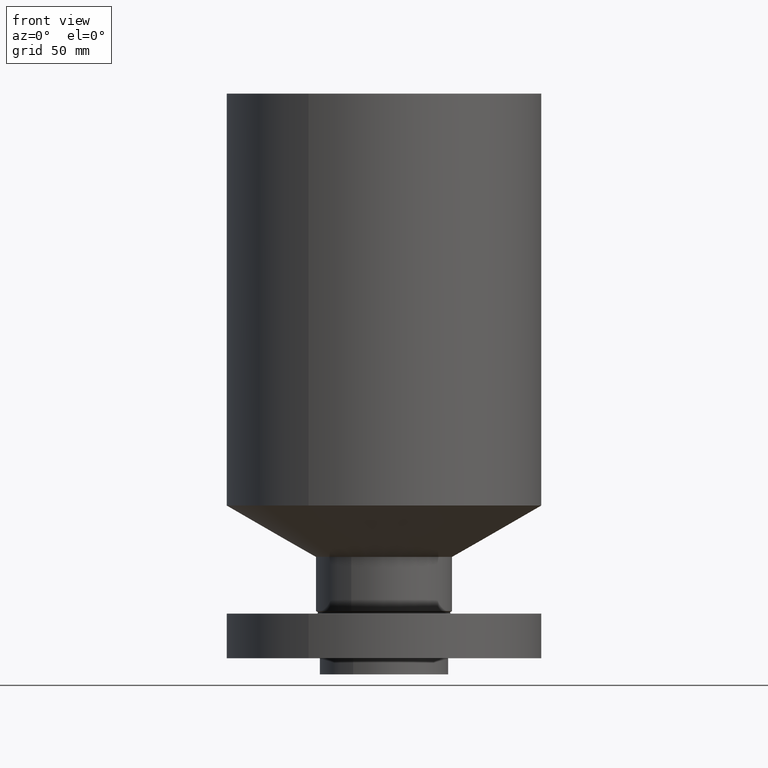
[diagram: clean part render]
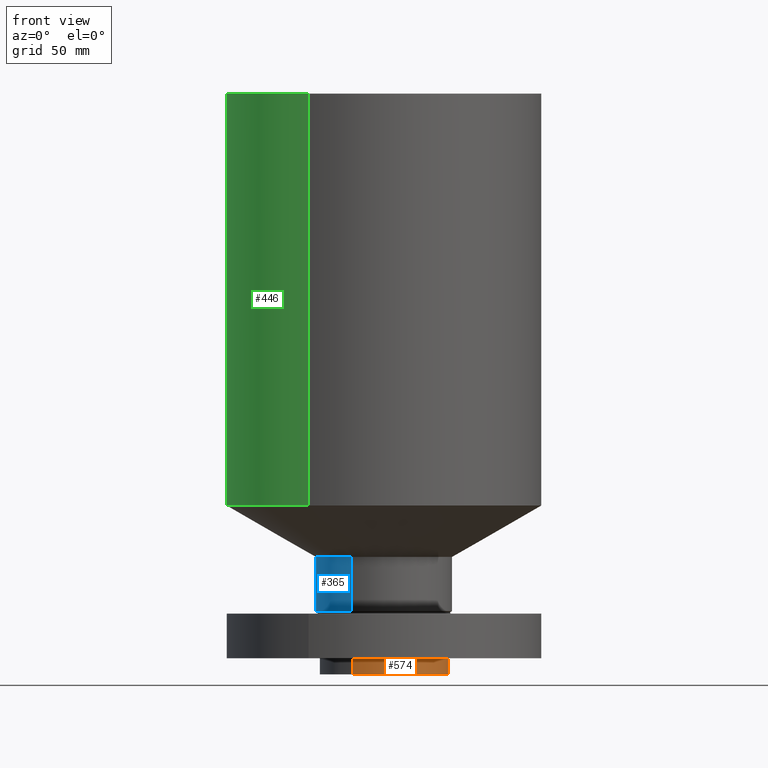
[diagram: same view with three faces highlighted in distinct colors, each labeled with its STEP entity id]
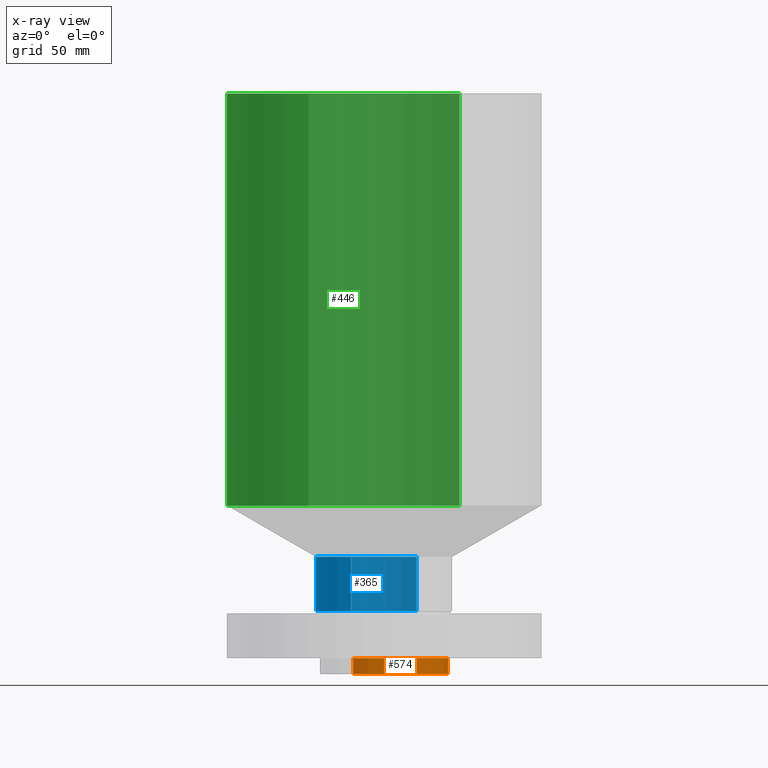
[diagram: x-ray of the same camera — body ghosted, the three highlighted faces saturated]
A machine part, front view with three faces highlighted in distinct colors.
The next image is the same camera in x-ray (body ghosted, the three faces saturated) — at least one of them is partly hidden behind the body in this view.
Their STEP definitions:

[orange] entity #574 — the highlighted cylindrical surface (partial cylindrical patch) has radius 25.4 mm, axis along (0, 0, -1).
#109=AXIS2_PLACEMENT_3D('Circle Axis2P3D',#107,#108,$) ;
#534=AXIS2_PLACEMENT_3D('Circle Axis2P3D',#532,#533,$) ;
#549=AXIS2_PLACEMENT_3D('Cylinder Axis2P3D',#546,#547,#548) ;
#107=CARTESIAN_POINT('Axis2P3D Location',(0.,0.,0.)) ;
#111=CARTESIAN_POINT('Vertex',(0.479425538606,0.877582561894,0.)) ;
#113=CARTESIAN_POINT('Vertex',(-0.479425538606,-0.877582561894,0.)) ;
#527=CARTESIAN_POINT('Vertex',(-0.479425538606,-0.877582561894,-0.250000000001)) ;
#529=CARTESIAN_POINT('Vertex',(0.479425538606,0.877582561894,-0.250000000001)) ;
#532=CARTESIAN_POINT('Axis2P3D Location',(0.,0.,-0.250000000001)) ;
#546=CARTESIAN_POINT('Axis2P3D Location',(0.,0.,4.25000000002)) ;
#551=CARTESIAN_POINT('Line Origine',(-0.479425538606,-0.877582561894,-0.125000000001)) ;
#556=CARTESIAN_POINT('Line Origine',(0.479425538606,0.877582561894,-0.125000000001)) ;
#108=DIRECTION('Axis2P3D Direction',(0.,0.,-0.0393700787402)) ;
#533=DIRECTION('Axis2P3D Direction',(0.,0.,-0.0393700787402)) ;
#547=DIRECTION('Axis2P3D Direction',(0.,0.,-0.0393700787402)) ;
#548=DIRECTION('Axis2P3D XDirection',(0.0188750212049,0.0345504945626,0.)) ;
#552=DIRECTION('Vector Direction',(0.,0.,-0.0393700787402)) ;
#557=DIRECTION('Vector Direction',(0.,0.,-0.0393700787402)) ;
#553=VECTOR('Line Direction',#552,0.0393700787402) ;
#558=VECTOR('Line Direction',#557,0.0393700787402) ;
#569=ORIENTED_EDGE('',*,*,#536,.F.) ;
#570=ORIENTED_EDGE('',*,*,#560,.T.) ;
#571=ORIENTED_EDGE('',*,*,#115,.T.) ;
#572=ORIENTED_EDGE('',*,*,#555,.F.) ;
#574=ADVANCED_FACE('PartBody',(#573),#550,.T.) ;
#110=CIRCLE('generated circle',#109,1.) ;
#535=CIRCLE('generated circle',#534,1.) ;
#550=CYLINDRICAL_SURFACE('generated cylinder',#549,1.) ;
#115=EDGE_CURVE('',#112,#114,#110,.T.) ;
#536=EDGE_CURVE('',#530,#528,#535,.T.) ;
#555=EDGE_CURVE('',#528,#114,#554,.F.) ;
#560=EDGE_CURVE('',#530,#112,#559,.F.) ;
#568=EDGE_LOOP('',(#569,#570,#571,#572)) ;
#573=FACE_OUTER_BOUND('',#568,.T.) ;
#554=LINE('Line',#551,#553) ;
#559=LINE('Line',#556,#558) ;
#112=VERTEX_POINT('',#111) ;
#114=VERTEX_POINT('',#113) ;
#528=VERTEX_POINT('',#527) ;
#530=VERTEX_POINT('',#529) ;

[blue] entity #365 — the highlighted cylindrical surface (partial cylindrical patch) has radius 26.924 mm, axis along (0, 0, -1).
#313=AXIS2_PLACEMENT_3D('Circle Axis2P3D',#311,#312,$) ;
#326=AXIS2_PLACEMENT_3D('Cylinder Axis2P3D',#323,#324,#325) ;
#356=AXIS2_PLACEMENT_3D('Circle Axis2P3D',#354,#355,$) ;
#289=CARTESIAN_POINT('Vertex',(0.508191070922,0.930237515608,0.730980762116)) ;
#296=CARTESIAN_POINT('Vertex',(-0.508191070922,-0.930237515608,0.730980762116)) ;
#311=CARTESIAN_POINT('Axis2P3D Location',(0.,0.,0.730980762116)) ;
#323=CARTESIAN_POINT('Axis2P3D Location',(0.,0.,4.25000000002)) ;
#328=CARTESIAN_POINT('Line Origine',(0.508191070922,0.930237515608,1.15049038106)) ;
#332=CARTESIAN_POINT('Vertex',(0.508191070922,0.930237515608,1.57000000001)) ;
#339=CARTESIAN_POINT('Vertex',(-0.508191070922,-0.930237515608,1.57000000001)) ;
#342=CARTESIAN_POINT('Line Origine',(-0.508191070922,-0.930237515608,1.15049038106)) ;
#354=CARTESIAN_POINT('Axis2P3D Location',(0.,0.,1.57000000001)) ;
#312=DIRECTION('Axis2P3D Direction',(-0.,0.,0.0393700787402)) ;
#324=DIRECTION('Axis2P3D Direction',(0.,0.,-0.0393700787402)) ;
#325=DIRECTION('Axis2P3D XDirection',(-0.0188750212049,-0.0345504945626,0.)) ;
#329=DIRECTION('Vector Direction',(0.,0.,-0.0393700787402)) ;
#343=DIRECTION('Vector Direction',(0.,0.,-0.0393700787402)) ;
#355=DIRECTION('Axis2P3D Direction',(0.,0.,-0.0393700787402)) ;
#330=VECTOR('Line Direction',#329,0.0393700787402) ;
#344=VECTOR('Line Direction',#343,0.0393700787402) ;
#360=ORIENTED_EDGE('',*,*,#315,.F.) ;
#361=ORIENTED_EDGE('',*,*,#346,.T.) ;
#362=ORIENTED_EDGE('',*,*,#358,.T.) ;
#363=ORIENTED_EDGE('',*,*,#334,.F.) ;
#365=ADVANCED_FACE('PartBody',(#364),#327,.T.) ;
#314=CIRCLE('generated circle',#313,1.06) ;
#357=CIRCLE('generated circle',#356,1.06) ;
#327=CYLINDRICAL_SURFACE('generated cylinder',#326,1.06) ;
#315=EDGE_CURVE('',#297,#290,#314,.F.) ;
#334=EDGE_CURVE('',#290,#333,#331,.F.) ;
#346=EDGE_CURVE('',#297,#340,#345,.F.) ;
#358=EDGE_CURVE('',#340,#333,#357,.T.) ;
#359=EDGE_LOOP('',(#360,#361,#362,#363)) ;
#364=FACE_OUTER_BOUND('',#359,.T.) ;
#331=LINE('Line',#328,#330) ;
#345=LINE('Line',#342,#344) ;
#290=VERTEX_POINT('',#289) ;
#297=VERTEX_POINT('',#296) ;
#333=VERTEX_POINT('',#332) ;
#340=VERTEX_POINT('',#339) ;

[green] entity #446 — the highlighted cylindrical surface (partial cylindrical patch) has radius 61.976 mm, axis along (0, 0, -1).
#183=AXIS2_PLACEMENT_3D('Cylinder Axis2P3D',#180,#181,#182) ;
#399=AXIS2_PLACEMENT_3D('Circle Axis2P3D',#397,#398,$) ;
#437=AXIS2_PLACEMENT_3D('Circle Axis2P3D',#435,#436,$) ;
#180=CARTESIAN_POINT('Axis2P3D Location',(0.,0.,4.25000000002)) ;
#375=CARTESIAN_POINT('Vertex',(1.1697983142,2.14130145102,2.36674337149)) ;
#382=CARTESIAN_POINT('Vertex',(-1.1697983142,-2.14130145102,2.36674337149)) ;
#397=CARTESIAN_POINT('Axis2P3D Location',(0.,0.,2.36674337149)) ;
#409=CARTESIAN_POINT('Line Origine',(1.1697983142,2.14130145102,5.55837168576)) ;
#413=CARTESIAN_POINT('Vertex',(1.1697983142,2.14130145102,8.75000000004)) ;
#420=CARTESIAN_POINT('Vertex',(-1.1697983142,-2.14130145102,8.75000000004)) ;
#423=CARTESIAN_POINT('Line Origine',(-1.1697983142,-2.14130145102,5.55837168576)) ;
#435=CARTESIAN_POINT('Axis2P3D Location',(0.,0.,8.75000000003)) ;
#181=DIRECTION('Axis2P3D Direction',(0.,0.,-0.0393700787402)) ;
#182=DIRECTION('Axis2P3D XDirection',(-0.0188750212049,-0.0345504945626,0.)) ;
#398=DIRECTION('Axis2P3D Direction',(-0.,0.,0.0393700787402)) ;
#410=DIRECTION('Vector Direction',(0.,0.,-0.0393700787402)) ;
#424=DIRECTION('Vector Direction',(0.,0.,-0.0393700787402)) ;
#436=DIRECTION('Axis2P3D Direction',(0.,0.,-0.0393700787402)) ;
#411=VECTOR('Line Direction',#410,0.0393700787402) ;
#425=VECTOR('Line Direction',#424,0.0393700787402) ;
#441=ORIENTED_EDGE('',*,*,#401,.F.) ;
#442=ORIENTED_EDGE('',*,*,#427,.T.) ;
#443=ORIENTED_EDGE('',*,*,#439,.T.) ;
#444=ORIENTED_EDGE('',*,*,#415,.F.) ;
#446=ADVANCED_FACE('PartBody',(#445),#184,.T.) ;
#400=CIRCLE('generated circle',#399,2.44000000001) ;
#438=CIRCLE('generated circle',#437,2.44000000001) ;
#184=CYLINDRICAL_SURFACE('generated cylinder',#183,2.44000000001) ;
#401=EDGE_CURVE('',#383,#376,#400,.F.) ;
#415=EDGE_CURVE('',#376,#414,#412,.F.) ;
#427=EDGE_CURVE('',#383,#421,#426,.F.) ;
#439=EDGE_CURVE('',#421,#414,#438,.T.) ;
#440=EDGE_LOOP('',(#441,#442,#443,#444)) ;
#445=FACE_OUTER_BOUND('',#440,.T.) ;
#412=LINE('Line',#409,#411) ;
#426=LINE('Line',#423,#425) ;
#376=VERTEX_POINT('',#375) ;
#383=VERTEX_POINT('',#382) ;
#414=VERTEX_POINT('',#413) ;
#421=VERTEX_POINT('',#420) ;